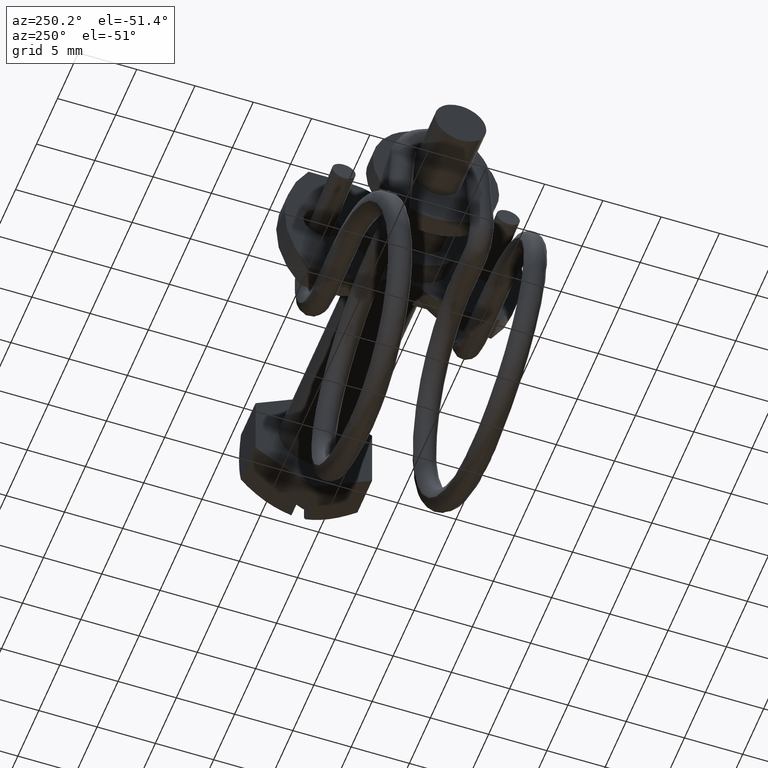
[diagram: clean part render]
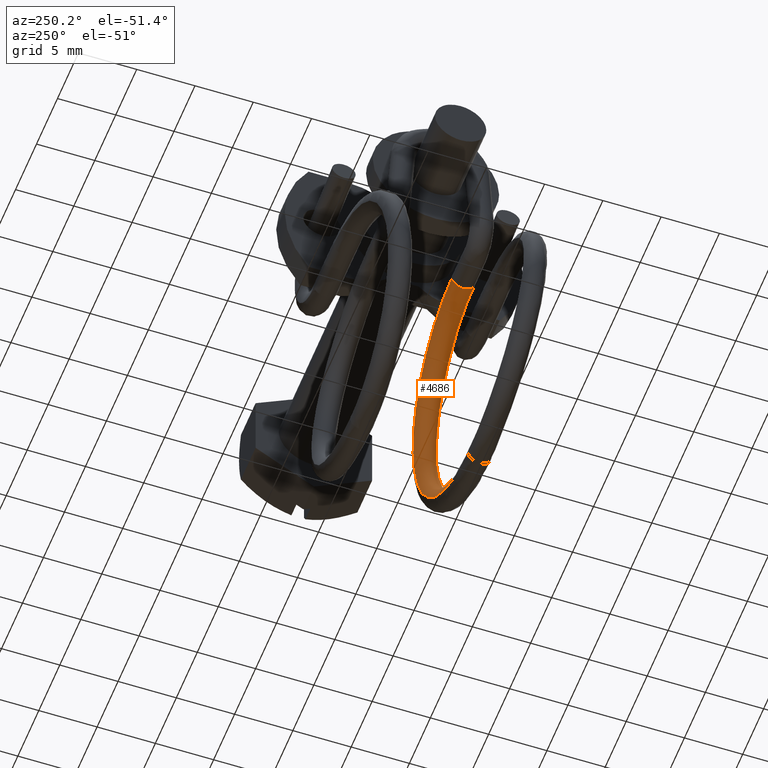
[diagram: same view with one face highlighted and labeled with its STEP entity id]
A machine part, auxiliary view. The second image highlights one B-rep face of the part: STEP entity #4686.
In plain terms, the highlighted face is a freeform B-spline surface patch.
Its self-contained STEP definition (entity closure, byte-faithful):
#4199=CARTESIAN_POINT('',(-25.454066662369350,-6.048063899656432,-29.524859682579802));
#4200=VERTEX_POINT('',#4199);
#4222=CARTESIAN_POINT('',(-25.454066662369350,-4.051936100389966,-29.649253448422350));
#4223=VERTEX_POINT('',#4222);
#4224=CARTESIAN_POINT('',(-25.454066662369350,-6.048063899656432,-29.524859682579802));
#4225=CARTESIAN_POINT('',(-25.454066662369350,-6.031780793784627,-29.263567164670899));
#4226=CARTESIAN_POINT('',(-25.454066662369350,-5.908033519696131,-29.010586793035252));
#4227=CARTESIAN_POINT('',(-25.454066662369350,-5.515482307961975,-28.664091159623350));
#4228=CARTESIAN_POINT('',(-25.454066662369350,-5.249095635010346,-28.572709559994149));
#4229=CARTESIAN_POINT('',(-25.454066662369350,-4.726510599193520,-28.605275771737752));
#4230=CARTESIAN_POINT('',(-25.454066662369350,-4.473530227558372,-28.729023045826452));
#4231=CARTESIAN_POINT('',(-25.454066662369350,-4.127034594147145,-29.121574257561299));
#4232=CARTESIAN_POINT('',(-25.454066662369350,-4.035652994518165,-29.387960930513451));
#4233=CARTESIAN_POINT('',(-25.454066662369350,-4.051936100389966,-29.649253448422350));
#4234=B_SPLINE_CURVE_WITH_KNOTS('',3,(#4224,#4225,#4226,#4227,#4228,#4229,#4230,#4231,#4232,#4233),.UNSPECIFIED.,.F.,.U.,(4,2,2,2,4),(0.500000000000000,0.625000000000000,0.750000000000000,0.875000000000000,1.0),.UNSPECIFIED.);
#4235=EDGE_CURVE('',#4200,#4223,#4234,.T.);
#4464=CARTESIAN_POINT('',(-25.800847001353230,-4.675124136596561,-7.493504580422088));
#4465=CARTESIAN_POINT('',(-25.792270959609230,-4.700520021625138,-7.764730259428524));
#4466=CARTESIAN_POINT('',(-25.783649638303249,-4.608910316661961,-8.044687804613201));
#4467=CARTESIAN_POINT('',(-25.771754903334031,-4.255483969574094,-8.445090085900805));
#4468=CARTESIAN_POINT('',(-25.768360360137130,-4.002503610496210,-8.568837359255470));
#4469=CARTESIAN_POINT('',(-25.768360360137130,-3.479918574678390,-8.601403570999080));
#4470=CARTESIAN_POINT('',(-25.771754903334031,-3.213531914277996,-8.510021970539164));
#4471=CARTESIAN_POINT('',(-25.783649638303249,-2.813128877871627,-8.156596478938967));
#4472=CARTESIAN_POINT('',(-25.792270959609230,-2.687470399768112,-7.890178551557849));
#4473=CARTESIAN_POINT('',(-25.800847001353240,-2.678996337326286,-7.617898346264353));
#4474=CARTESIAN_POINT('',(-25.685253555025270,-4.675124136596561,-7.493504580422088));
#4475=CARTESIAN_POINT('',(-25.679536193862599,-4.700520021625138,-7.764730259428524));
#4476=CARTESIAN_POINT('',(-25.673788646325271,-4.608910316661961,-8.044687804613201));
#4477=CARTESIAN_POINT('',(-25.665858823012471,-4.255483969574094,-8.445090085900805));
#4478=CARTESIAN_POINT('',(-25.663595794214530,-4.002503610496210,-8.568837359255470));
#4479=CARTESIAN_POINT('',(-25.663595794214530,-3.479918574678390,-8.601403570999080));
#4480=CARTESIAN_POINT('',(-25.665858823012471,-3.213531914277996,-8.510021970539164));
#4481=CARTESIAN_POINT('',(-25.673788646325281,-2.813128877871627,-8.156596478938967));
#4482=CARTESIAN_POINT('',(-25.679536193862599,-2.687470399768112,-7.890178551557849));
#4483=CARTESIAN_POINT('',(-25.685253555025270,-2.678996337326286,-7.617898346264353));
#4484=CARTESIAN_POINT('',(-25.569660108697310,-4.675124136596561,-7.493504580422088));
#4485=CARTESIAN_POINT('',(-25.566801428115980,-4.700520021625138,-7.764730259428524));
#4486=CARTESIAN_POINT('',(-25.563927654347310,-4.608910316661961,-8.044687804613201));
#4487=CARTESIAN_POINT('',(-25.559962742690910,-4.255483969574094,-8.445090085900805));
#4488=CARTESIAN_POINT('',(-25.558831228291940,-4.002503610496210,-8.568837359255470));
#4489=CARTESIAN_POINT('',(-25.558831228291940,-3.479918574678390,-8.601403570999080));
#4490=CARTESIAN_POINT('',(-25.559962742690910,-3.213531914277996,-8.510021970539164));
#4491=CARTESIAN_POINT('',(-25.563927654347310,-2.813128877871627,-8.156596478938967));
#4492=CARTESIAN_POINT('',(-25.566801428115980,-2.687470399768112,-7.890178551557849));
#4493=CARTESIAN_POINT('',(-25.569660108697310,-2.678996337326286,-7.617898346264353));
#4494=CARTESIAN_POINT('',(-24.009277145880841,-4.675123161398194,-7.493488931565707));
#4495=CARTESIAN_POINT('',(-24.045007108977170,-4.700519087247262,-7.764715265612526));
#4496=CARTESIAN_POINT('',(-24.080925718205300,-4.608909423320188,-8.044673469296566));
#4497=CARTESIAN_POINT('',(-24.130482198244039,-4.255483132849220,-8.445076659108928));
#4498=CARTESIAN_POINT('',(-24.144624725389189,-4.002502789928884,-8.568824191738612));
#4499=CARTESIAN_POINT('',(-24.144624725389189,-3.479917754110764,-8.601390403482020));
#4500=CARTESIAN_POINT('',(-24.130482198244039,-3.213531077552755,-8.510008543747290));
#4501=CARTESIAN_POINT('',(-24.080925718205290,-2.813127984529642,-8.156582143622337));
#4502=CARTESIAN_POINT('',(-24.045007108977149,-2.687469465390021,-7.890163557741851));
#4503=CARTESIAN_POINT('',(-24.009277145880802,-2.678995362127684,-7.617882697407973));
#4504=CARTESIAN_POINT('',(-21.121085432458830,-4.710946792211705,-8.068345274805406));
#4505=CARTESIAN_POINT('',(-21.228238028034710,-4.735456366568058,-8.325348461553604));
#4506=CARTESIAN_POINT('',(-21.335956365101929,-4.642955671412707,-8.591008422934358));
#4507=CARTESIAN_POINT('',(-21.484574079858650,-4.288300035701052,-8.971684497065377));
#4508=CARTESIAN_POINT('',(-21.526986899808058,-4.034968859783639,-9.089802266065977));
#4509=CARTESIAN_POINT('',(-21.526986899808058,-3.512383823966081,-9.122368477810596));
#4510=CARTESIAN_POINT('',(-21.484574079858650,-3.246347980405540,-9.036616381703739));
#4511=CARTESIAN_POINT('',(-21.335956365101900,-2.847174232622186,-8.702917097260119));
#4512=CARTESIAN_POINT('',(-21.228238028034639,-2.722406744710860,-8.450796753682941));
#4513=CARTESIAN_POINT('',(-21.121085432458731,-2.714818992941356,-8.192739040647682));
#4514=CARTESIAN_POINT('',(-17.448756392187072,-4.863929436910341,-10.523234455258580));
#4515=CARTESIAN_POINT('',(-17.646557712348510,-4.884660960808406,-10.719611842186470));
#4516=CARTESIAN_POINT('',(-17.845403378788689,-4.788362267941839,-10.924325913222621));
#4517=CARTESIAN_POINT('',(-18.119748391343421,-4.428466579740094,-11.220915663769739));
#4518=CARTESIAN_POINT('',(-18.198041518381778,-4.173639987187887,-11.315036709981060));
#4519=CARTESIAN_POINT('',(-18.198041518381778,-3.651054951369922,-11.347602921724590));
#4520=CARTESIAN_POINT('',(-18.119748391343421,-3.386514524443758,-11.285847548408119));
#4521=CARTESIAN_POINT('',(-17.845403378788639,-2.992580829151446,-11.036234587548410));
#4522=CARTESIAN_POINT('',(-17.646557712348379,-2.871611338951310,-10.845060134316009));
#4523=CARTESIAN_POINT('',(-17.448756392186869,-2.867801637640034,-10.647628221100989));
#4524=CARTESIAN_POINT('',(-14.995940634073110,-5.092801862886018,-14.195915388132899));
#4525=CARTESIAN_POINT('',(-15.254131519153420,-5.107895685331833,-14.301825439207191));
#4526=CARTESIAN_POINT('',(-15.513685593770960,-5.005929525222952,-14.415594527295291));
#4527=CARTESIAN_POINT('',(-15.871789278574830,-4.638214499545120,-14.586708561246590));
#4528=CARTESIAN_POINT('',(-15.973985622608369,-4.381156408862956,-14.645021097116240));
#4529=CARTESIAN_POINT('',(-15.973985622608369,-3.858571373045228,-14.677587308859120));
#4530=CARTESIAN_POINT('',(-15.871789278574830,-3.596262444249063,-14.651640445884921));
#4531=CARTESIAN_POINT('',(-15.513685593770900,-3.210148086433098,-14.527503201621080));
#4532=CARTESIAN_POINT('',(-15.254131519153241,-3.094846063475299,-14.427273731335751));
#4533=CARTESIAN_POINT('',(-14.995940634072850,-3.096674063616080,-14.320309153974980));
#4534=CARTESIAN_POINT('',(-14.135568284352750,-5.362720217033487,-18.527254073772930));
#4535=CARTESIAN_POINT('',(-14.414903880013741,-5.371177461102997,-18.526667963247782));
#4536=CARTESIAN_POINT('',(-14.695714304504850,-5.262539682983721,-18.533378614066720));
#4537=CARTESIAN_POINT('',(-15.083145123651651,-4.885619904897403,-18.556785389204329));
#4538=CARTESIAN_POINT('',(-15.193710903796291,-4.625934943608820,-18.572944932857190));
#4539=CARTESIAN_POINT('',(-15.193710903796291,-4.103349907790981,-18.605511144600790));
#4540=CARTESIAN_POINT('',(-15.083145123651651,-3.843667849601212,-18.621717273842659));
#4541=CARTESIAN_POINT('',(-14.695714304504790,-3.466758244193247,-18.645287288392549));
#4542=CARTESIAN_POINT('',(-14.414903880013551,-3.358127839245684,-18.652116255377258));
#4543=CARTESIAN_POINT('',(-14.135568284352461,-3.366592417762933,-18.651647839615482));
#4544=CARTESIAN_POINT('',(-14.997727477742330,-5.632597489084927,-22.857933521284910));
#4545=CARTESIAN_POINT('',(-15.255874379897040,-5.634419158122777,-22.750867349680540));
#4546=CARTESIAN_POINT('',(-15.515384239367000,-5.519110770635145,-22.650535748757981));
#4547=CARTESIAN_POINT('',(-15.873426921057099,-5.132987631753351,-22.526257596060312));
#4548=CARTESIAN_POINT('',(-15.975605855901311,-4.870676196998484,-22.500270520355141));
#4549=CARTESIAN_POINT('',(-15.975605855901311,-4.348091161180667,-22.532836732099490));
#4550=CARTESIAN_POINT('',(-15.873426921057099,-4.091035576457005,-22.591189480698642));
#4551=CARTESIAN_POINT('',(-15.515384239366940,-3.723329331844763,-22.762444423083831));
#4552=CARTESIAN_POINT('',(-15.255874379896850,-3.621369536265810,-22.876315641810940));
#4553=CARTESIAN_POINT('',(-14.997727477742069,-3.636469689814805,-22.982327287127880));
#4554=CARTESIAN_POINT('',(-17.451421656326929,-5.861365050806843,-26.528931713438649));
#4555=CARTESIAN_POINT('',(-17.649157268267171,-5.857551586948431,-26.331439423203371));
#4556=CARTESIAN_POINT('',(-17.847936879561001,-5.736578314335759,-26.140204274174799));
#4557=CARTESIAN_POINT('',(-18.122190756612341,-5.342639400493527,-25.890507572043312));
#4558=CARTESIAN_POINT('',(-18.200457875218799,-5.078097484287445,-25.828728300474651));
#4559=CARTESIAN_POINT('',(-18.200457875218799,-4.555512448469625,-25.861294512218350));
#4560=CARTESIAN_POINT('',(-18.122190756612341,-4.300687345197623,-25.955439456681670));
#4561=CARTESIAN_POINT('',(-17.847936879560962,-3.940796875545438,-26.252112948500649));
#4562=CARTESIAN_POINT('',(-17.649157268267050,-3.844501965091574,-26.456887715332901));
#4563=CARTESIAN_POINT('',(-17.451421656326740,-3.865237251536716,-26.653325479281349));
#4564=CARTESIAN_POINT('',(-21.123161286738590,-6.014233284085996,-28.981984951426160));
#4565=CARTESIAN_POINT('',(-21.230262557493390,-6.006644590123287,-28.723912119163760));
#4566=CARTESIAN_POINT('',(-21.337929298758770,-5.881876155044655,-28.471776576531258));
#4567=CARTESIAN_POINT('',(-21.486475827395822,-5.482701100465603,-28.138056322132108));
#4568=CARTESIAN_POINT('',(-21.528868332108939,-5.216664883968912,-28.052298241580829));
#4569=CARTESIAN_POINT('',(-21.528868332108939,-4.694079848151108,-28.084864453323409));
#4570=CARTESIAN_POINT('',(-21.486475827395822,-4.440749045169424,-28.202988206770481));
#4571=CARTESIAN_POINT('',(-21.337929298758741,-4.086094716254326,-28.583685250857179));
#4572=CARTESIAN_POINT('',(-21.230262557493319,-3.993594968266010,-28.849360411293400));
#4573=CARTESIAN_POINT('',(-21.123161286738480,-4.018105484815504,-29.106378717268910));
#4574=CARTESIAN_POINT('',(-24.010038285643699,-6.050018823044009,-29.556230040048820));
#4575=CARTESIAN_POINT('',(-24.045749423922022,-6.041544720452301,-29.283949190474711));
#4576=CARTESIAN_POINT('',(-24.081649108941299,-5.915886201986631,-29.017530615412792));
#4577=CARTESIAN_POINT('',(-24.131179479473019,-5.515483109893292,-28.664104230214150));
#4578=CARTESIAN_POINT('',(-24.145314555435039,-5.249096433601037,-28.572722374737090));
#4579=CARTESIAN_POINT('',(-24.145314555435039,-4.726511397783219,-28.605288586480889));
#4580=CARTESIAN_POINT('',(-24.131179479473019,-4.473531054597212,-28.729036114852470));
#4581=CARTESIAN_POINT('',(-24.081649108941299,-4.120104763196305,-29.129439289738670));
#4582=CARTESIAN_POINT('',(-24.045749423922000,-4.028495098595351,-29.409397482604419));
#4583=CARTESIAN_POINT('',(-24.010038285643660,-4.053891023773817,-29.680623805891639));
#4584=CARTESIAN_POINT('',(-25.569599197936199,-6.050017872372404,-29.556214784728589));
#4585=CARTESIAN_POINT('',(-25.566742023853351,-6.041543809930509,-29.283934579435201));
#4586=CARTESIAN_POINT('',(-25.563869764536999,-5.915885331827014,-29.017516652054191));
#4587=CARTESIAN_POINT('',(-25.559906942352701,-5.515482295420711,-28.664091160454081));
#4588=CARTESIAN_POINT('',(-25.558776024251380,-5.249095635020320,-28.572709559994149));
#4589=CARTESIAN_POINT('',(-25.558776024251380,-4.726510599202500,-28.605275771737752));
#4590=CARTESIAN_POINT('',(-25.559906942352701,-4.473530240124616,-28.729023045092411));
#4591=CARTESIAN_POINT('',(-25.563869764536999,-4.120103893036688,-29.129425326380080));
#4592=CARTESIAN_POINT('',(-25.566742023853351,-4.028494188073506,-29.409382871564901));
#4593=CARTESIAN_POINT('',(-25.569599197936210,-4.053890073102163,-29.680608550571421));
#4594=CARTESIAN_POINT('',(-25.685131733503059,-6.050017872372404,-29.556214784728589));
#4595=CARTESIAN_POINT('',(-25.679417385337349,-6.041543809930509,-29.283934579435201));
#4596=CARTESIAN_POINT('',(-25.673672866704660,-5.915885331827014,-29.017516652054191));
#4597=CARTESIAN_POINT('',(-25.665747222336051,-5.515482295420711,-28.664091160454081));
#4598=CARTESIAN_POINT('',(-25.663485386133420,-5.249095635020320,-28.572709559994149));
#4599=CARTESIAN_POINT('',(-25.663485386133420,-4.726510599202500,-28.605275771737752));
#4600=CARTESIAN_POINT('',(-25.665747222336051,-4.473530240124616,-28.729023045092411));
#4601=CARTESIAN_POINT('',(-25.673672866704660,-4.120103893036688,-29.129425326380080));
#4602=CARTESIAN_POINT('',(-25.679417385337349,-4.028494188073506,-29.409382871564901));
#4603=CARTESIAN_POINT('',(-25.685131733503070,-4.053890073102163,-29.680608550571421));
#4604=CARTESIAN_POINT('',(-25.800664269069919,-6.050017872372404,-29.556214784728589));
#4605=CARTESIAN_POINT('',(-25.792092746821361,-6.041543809930509,-29.283934579435201));
#4606=CARTESIAN_POINT('',(-25.783475968872310,-5.915885331827014,-29.017516652054191));
#4607=CARTESIAN_POINT('',(-25.771587502319399,-5.515482295420711,-28.664091160454081));
#4608=CARTESIAN_POINT('',(-25.768194748015450,-5.249095635020320,-28.572709559994149));
#4609=CARTESIAN_POINT('',(-25.768194748015450,-4.726510599202500,-28.605275771737752));
#4610=CARTESIAN_POINT('',(-25.771587502319399,-4.473530240124616,-28.729023045092411));
#4611=CARTESIAN_POINT('',(-25.783475968872310,-4.120103893036688,-29.129425326380080));
#4612=CARTESIAN_POINT('',(-25.792092746821361,-4.028494188073506,-29.409382871564901));
#4613=CARTESIAN_POINT('',(-25.800664269069930,-4.053890073102163,-29.680608550571421));
#4614=B_SPLINE_SURFACE_WITH_KNOTS('',3,3,((#4464,#4474,#4484,#4494,#4504,#4514,#4524,#4534,#4544,#4554,#4564,#4574,#4584,#4594,#4604),(#4465,#4475,#4485,#4495,#4505,#4515,#4525,#4535,#4545,#4555,#4565,#4575,#4585,#4595,#4605),(#4466,#4476,#4486,#4496,#4506,#4516,#4526,#4536,#4546,#4556,#4566,#4576,#4586,#4596,#4606),(#4467,#4477,#4487,#4497,#4507,#4517,#4527,#4537,#4547,#4557,#4567,#4577,#4587,#4597,#4607),(#4468,#4478,#4488,#4498,#4508,#4518,#4528,#4538,#4548,#4558,#4568,#4578,#4588,#4598,#4608),(#4469,#4479,#4489,#4499,#4509,#4519,#4529,#4539,#4549,#4559,#4569,#4579,#4589,#4599,#4609),(#4470,#4480,#4490,#4500,#4510,#4520,#4530,#4540,#4550,#4560,#4570,#4580,#4590,#4600,#4610),(#4471,#4481,#4491,#4501,#4511,#4521,#4531,#4541,#4551,#4561,#4571,#4581,#4591,#4601,#4611),(#4472,#4482,#4492,#4502,#4512,#4522,#4532,#4542,#4552,#4562,#4572,#4582,#4592,#4602,#4612),(#4473,#4483,#4493,#4503,#4513,#4523,#4533,#4543,#4553,#4563,#4573,#4583,#4593,#4603,#4613)),.UNSPECIFIED.,.F.,.F.,.U.,(4,2,2,2,4),(4,2,1,1,1,1,1,1,1,2,4),(0.0,0.817641006669760,1.603834282314027,2.390027557958294,3.207668564628330),(0.0,0.347152855439687,4.686563548435540,9.025974241431179,13.365384934427031,17.704795627422641,22.044206320418532,26.383617013414138,30.723027706409990,35.062438399405657,35.409591254845331),.UNSPECIFIED.);
#4615=CARTESIAN_POINT('',(-25.454066662369360,-4.677078109303375,-7.524859682571018));
#4616=VERTEX_POINT('',#4615);
#4617=CARTESIAN_POINT('',(-25.454066662369360,-4.677078109303375,-7.524859682571018));
#4618=CARTESIAN_POINT('',(-24.013271547906889,-4.677078109303375,-7.524859682571018));
#4619=CARTESIAN_POINT('',(-22.573680556455940,-4.694935879223181,-7.811420594509856));
#4620=CARTESIAN_POINT('',(-19.912549093233611,-4.763654468657582,-8.914137324505456));
#4621=CARTESIAN_POINT('',(-18.692288258807661,-4.814488013088578,-9.729855463480195));
#4622=CARTESIAN_POINT('',(-16.656182680318331,-4.941427161003523,-11.766828620860061));
#4623=CARTESIAN_POINT('',(-15.841134148093429,-5.017482773437130,-12.987281440508101));
#4624=CARTESIAN_POINT('',(-14.739712652736269,-5.183297171068622,-15.648079804423640));
#4625=CARTESIAN_POINT('',(-14.453769001214299,-5.272990846519607,-17.087380542482759));
#4626=CARTESIAN_POINT('',(-14.454364794434850,-5.452434830117698,-19.966890794805689));
#4627=CARTESIAN_POINT('',(-14.740902121483320,-5.542114776064928,-21.405971217618951));
#4628=CARTESIAN_POINT('',(-15.843210577484550,-5.707880694879530,-24.065991649333039));
#4629=CARTESIAN_POINT('',(-16.658548791827730,-5.783901700994742,-25.285889146653702));
#4630=CARTESIAN_POINT('',(-18.694749963682849,-5.910768035228927,-27.321693874035891));
#4631=CARTESIAN_POINT('',(-19.914814843751682,-5.961563619247254,-28.136802868042050));
#4632=CARTESIAN_POINT('',(-22.575094518490619,-6.030225047933368,-29.238602348209600));
#4633=CARTESIAN_POINT('',(-24.014030759656102,-6.048063899667805,-29.524859682579802));
#4634=CARTESIAN_POINT('',(-25.454066662369350,-6.048063899667805,-29.524859682579802));
#4635=B_SPLINE_CURVE_WITH_KNOTS('',3,(#4617,#4618,#4619,#4620,#4621,#4622,#4623,#4624,#4625,#4626,#4627,#4628,#4629,#4630,#4631,#4632,#4633,#4634),.UNSPECIFIED.,.F.,.U.,(4,2,2,2,2,2,2,2,4),(0.576160922536295,0.596221163250890,0.616281403965484,0.636341644680079,0.656401885394673,0.676462126109268,0.696522366823862,0.716582607538457,0.736642848253051),.UNSPECIFIED.);
#4636=EDGE_CURVE('',#4616,#4200,#4635,.T.);
#4637=ORIENTED_EDGE('',*,*,#4636,.F.);
#4638=CARTESIAN_POINT('',(-25.454066663493460,-3.802020660909247,-8.579423214156199));
#4639=VERTEX_POINT('',#4638);
#4640=CARTESIAN_POINT('',(-25.454066662369360,-4.677078109303375,-7.524859682571018));
#4641=CARTESIAN_POINT('',(-25.454066662525779,-4.693361894086978,-7.786157574108269));
#4642=CARTESIAN_POINT('',(-25.454066662741820,-4.601981232122132,-8.052551668729450));
#4643=CARTESIAN_POINT('',(-25.454066663154439,-4.268966867269022,-8.429845909954032));
#4644=CARTESIAN_POINT('',(-25.454066663348978,-4.041391271764135,-8.549175743510574));
#4645=CARTESIAN_POINT('',(-25.454066663493460,-3.802020660909247,-8.579423214156199));
#4646=B_SPLINE_CURVE_WITH_KNOTS('',3,(#4640,#4641,#4642,#4643,#4644,#4645),.UNSPECIFIED.,.F.,.U.,(4,2,4),(0.500000000000000,0.625000000000000,0.740274424587878),.UNSPECIFIED.);
#4647=EDGE_CURVE('',#4616,#4639,#4646,.T.);
#4648=ORIENTED_EDGE('',*,*,#4647,.T.);
#4649=CARTESIAN_POINT('',(-25.454066662369371,-2.680950310035301,-7.649253448413145));
#4650=VERTEX_POINT('',#4649);
#4651=CARTESIAN_POINT('',(-25.454066663493460,-3.802020660909247,-8.579423214156199));
#4652=CARTESIAN_POINT('',(-25.454066663482731,-3.781825128322052,-8.581974372098054));
#4653=CARTESIAN_POINT('',(-25.454066663471629,-3.761545637494010,-8.583891431789942));
#4654=CARTESIAN_POINT('',(-25.454066663313029,-3.479922670487476,-8.601435989546920));
#4655=CARTESIAN_POINT('',(-25.454066663109799,-3.213535115443012,-8.510047408101771));
#4656=CARTESIAN_POINT('',(-25.454066662705930,-2.820982150802797,-8.163537900334966));
#4657=CARTESIAN_POINT('',(-25.454066662507799,-2.697234016695167,-7.910550721596377));
#4658=CARTESIAN_POINT('',(-25.454066662369371,-2.680950310035301,-7.649253448413145));
#4659=B_SPLINE_CURVE_WITH_KNOTS('',3,(#4651,#4652,#4653,#4654,#4655,#4656,#4657,#4658),.UNSPECIFIED.,.F.,.U.,(4,2,2,4),(0.740274424587878,0.750000000000000,0.875000000000000,1.0),.UNSPECIFIED.);
#4660=EDGE_CURVE('',#4639,#4650,#4659,.T.);
#4661=ORIENTED_EDGE('',*,*,#4660,.T.);
#4662=CARTESIAN_POINT('',(-25.454066662369371,-2.680950310035301,-7.649253448413145));
#4663=CARTESIAN_POINT('',(-24.013271547906900,-2.680950310035301,-7.649253448413145));
#4664=CARTESIAN_POINT('',(-22.573680556455951,-2.698808079954453,-7.935814360351991));
#4665=CARTESIAN_POINT('',(-19.912549093233629,-2.767526669389993,-9.038531090347608));
#4666=CARTESIAN_POINT('',(-18.692288258807672,-2.818360213819978,-9.854249229322358));
#4667=CARTESIAN_POINT('',(-16.656182680318349,-2.945299361735343,-11.891222386702269));
#4668=CARTESIAN_POINT('',(-15.841134148093451,-3.021354974167731,-13.111675206350331));
#4669=CARTESIAN_POINT('',(-14.739712652736280,-3.187169371800524,-15.772473570265900));
#4670=CARTESIAN_POINT('',(-14.453769001214299,-3.276863047250742,-17.211774308323790));
#4671=CARTESIAN_POINT('',(-14.454364794434859,-3.456307030848234,-20.091284560649299));
#4672=CARTESIAN_POINT('',(-14.740902121483330,-3.545986976796419,-21.530364983461350));
#4673=CARTESIAN_POINT('',(-15.843210577484561,-3.711752895608876,-24.190385415175481));
#4674=CARTESIAN_POINT('',(-16.658548791827730,-3.787773901724902,-25.410282912496179));
#4675=CARTESIAN_POINT('',(-18.694749963682849,-3.914640235958888,-27.446087639878400));
#4676=CARTESIAN_POINT('',(-19.914814843751682,-3.965435819977133,-28.261196633884559));
#4677=CARTESIAN_POINT('',(-22.575094518490630,-4.034097248663137,-29.362996114052120));
#4678=CARTESIAN_POINT('',(-24.014030759656102,-4.051936100397547,-29.649253448422350));
#4679=CARTESIAN_POINT('',(-25.454066662369350,-4.051936100397547,-29.649253448422350));
#4680=B_SPLINE_CURVE_WITH_KNOTS('',3,(#4662,#4663,#4664,#4665,#4666,#4667,#4668,#4669,#4670,#4671,#4672,#4673,#4674,#4675,#4676,#4677,#4678,#4679),.UNSPECIFIED.,.F.,.U.,(4,2,2,2,2,2,2,2,4),(0.576160922536295,0.596221163250890,0.616281403965484,0.636341644680079,0.656401885394673,0.676462126109268,0.696522366823862,0.716582607538457,0.736642848253051),.UNSPECIFIED.);
#4681=EDGE_CURVE('',#4650,#4223,#4680,.T.);
#4682=ORIENTED_EDGE('',*,*,#4681,.T.);
#4683=ORIENTED_EDGE('',*,*,#4235,.F.);
#4684=EDGE_LOOP('',(#4637,#4648,#4661,#4682,#4683));
#4685=FACE_OUTER_BOUND('',#4684,.T.);
#4686=ADVANCED_FACE('',(#4685),#4614,.T.);